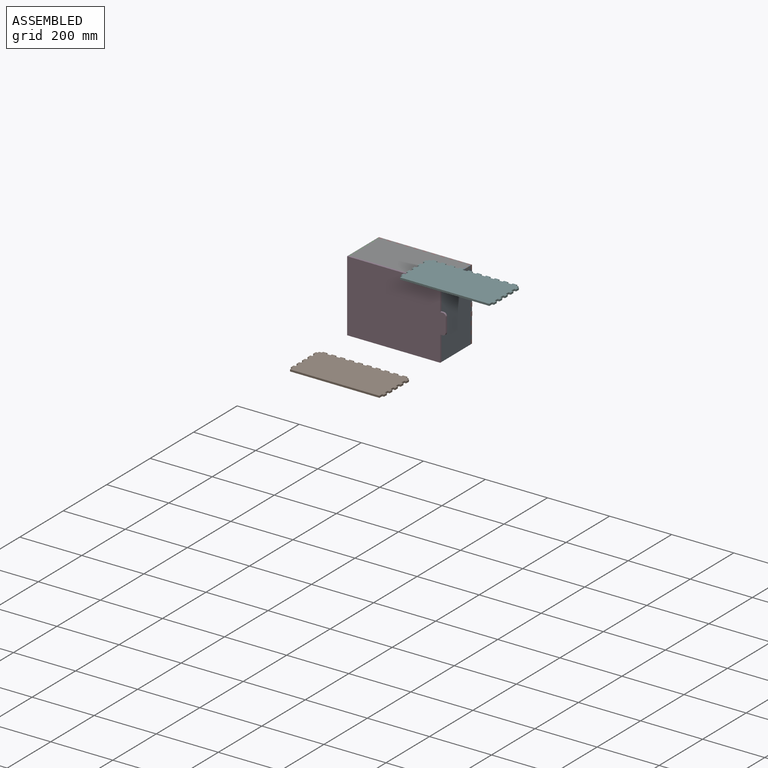
[diagram: assembled view]
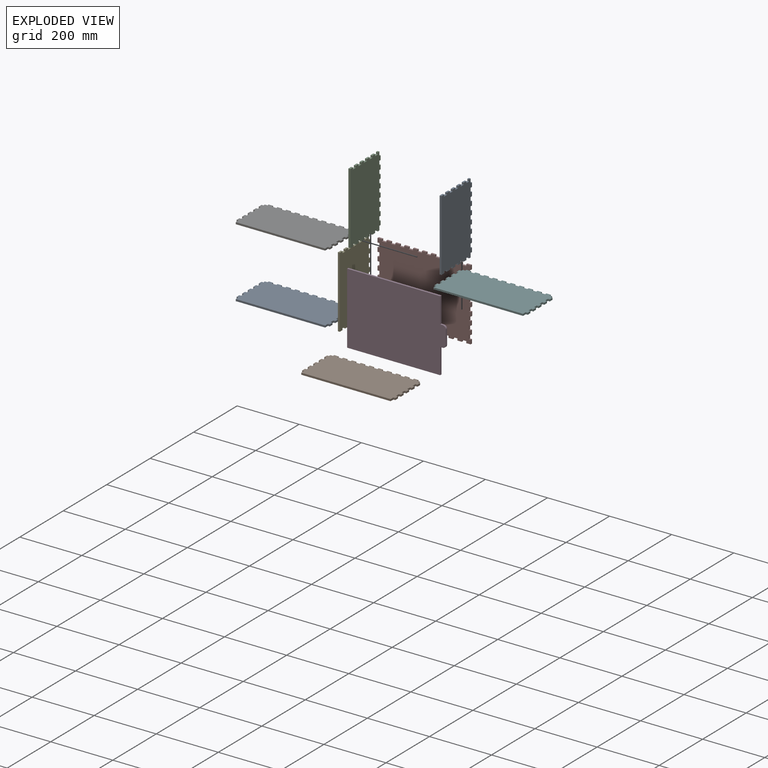
[diagram: exploded view]
GUIDED TOUR — MATED ASSEMBLY (Onshape document c0f93b202b602cbd2d23033f, AutoMate assembly c0f93b202b602cbd2d23033f_798e643a001d0c904de547af_803018418724ee15e28c0f07_default)

This assembly has 9 components, labeled P0..P8 below (a component is one placed occurrence of a part; the same part can appear more than once), held together by 5 mates. A mate is a constraint between two components; its type names the relative motion it leaves free:
  FASTENED — locks the two components together rigidly (no relative motion),
  REVOLUTE — leaves rotation about the listed axis free (a hinge).
Axis/direction vectors are unit vectors and 'through' points are millimeter coordinates, both in the assembly's world frame.

MATES
  1. FASTENED "Fastened 1": P7 <-> P8, direction (1.000, 0.000, 0.000) through (-205.83, -22.58, -101.08) mm
  2. FASTENED "front": P7 <-> P0, direction (0.000, 0.000, 1.000) through (66.74, -22.58, -86.78) mm
  3. FASTENED "ende": P7 <-> P2, direction (0.000, 0.000, 1.000) through (-221.26, -22.58, 102.63) mm
  4. FASTENED "Fastened 2": P7 <-> P6, direction (1.000, 0.000, 0.000) through (51.31, -22.58, 116.92) mm
  5. REVOLUTE "Revolute 1": P3 <-> P2, axis (0.000, 0.000, -1.000) through (-227.26, -162.58, 7.92) mm

ASSEMBLY ORDER
  1. P4 — the base component [order verified]
  2. P2 [order verified]
  3. P0 [order verified]
  4. P7 [order verified]
  5. P8 [order verified]
  6. P6 [order verified]
  7. P3 [order verified]
  8. P5 [order verified]
  9. P1 [order verified]
Order-tag legend:
  [order verified] — this step's position reverses a verified removal order: the component was checked to insert without passing through the ones already placed.

Of the 9 components, 9 carry the full construction recipe — the FeatureScript program that regenerates the part's solid from scratch; the rest are supplied as boundary geometry only.
Each toured component is shown spotlighted twice — in the assembled view, then in the exploded view, where a leader line traces a displaced component back to its assembled socket (saturated green if recipe-attached, orange if geometry-only; every other component desaturated gray) — followed by its recipe or geometry summary and the mates that hold it.
NOTE — document 2 of 2 of this assembly tour. The two overview renders and the header above are repeated from document 1; the component sections below continue where the previous document stopped.
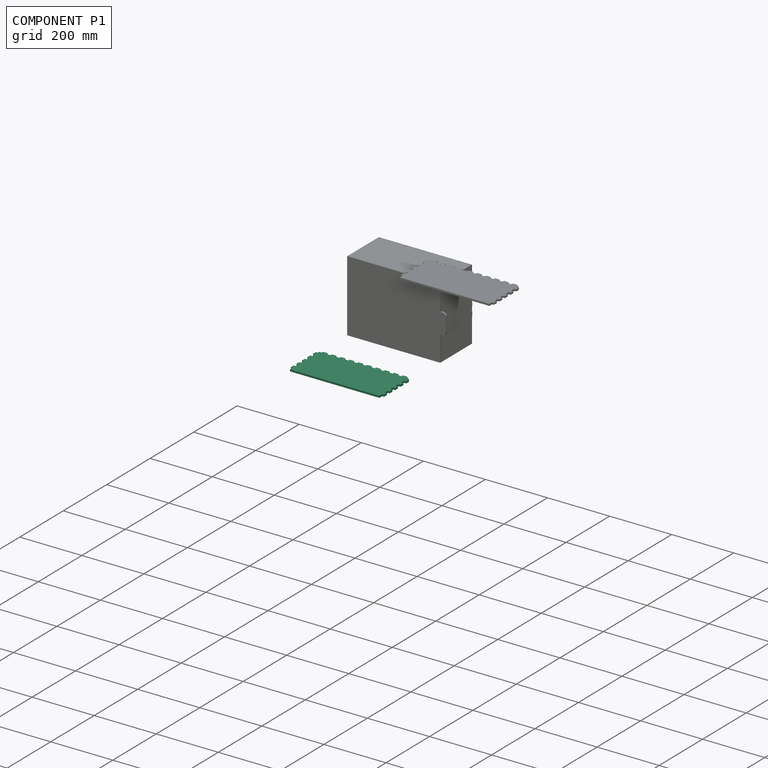
[diagram: component P1 — assembled]
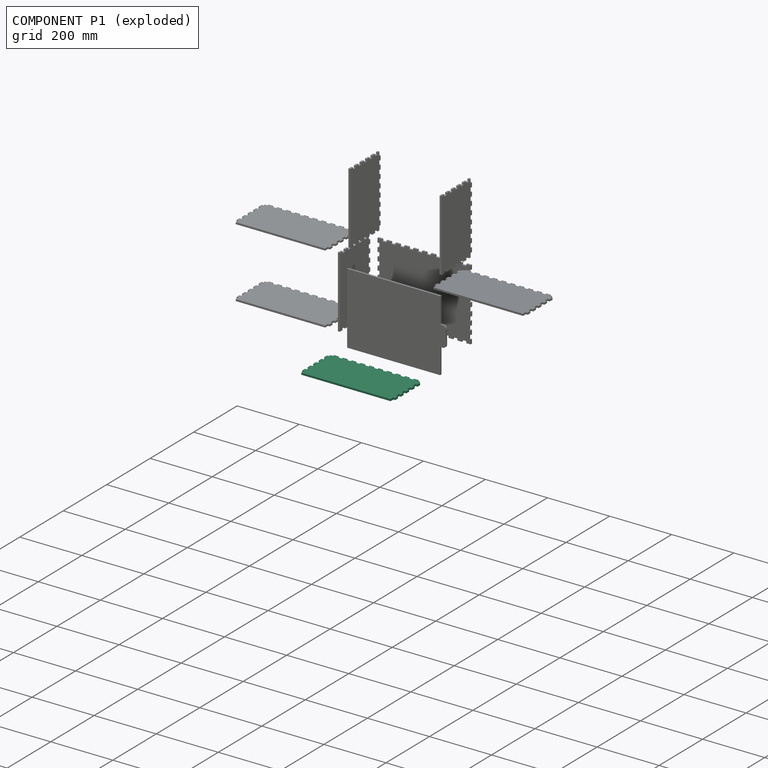
[diagram: component P1 — exploded]
COMPONENT P1 — recipe-attached (CADFS 00955357, mesh-verified: the recipe's output STEP matches this component's geometry to below the mesh-comparison resolution (tessellation chordal tolerance ~0.497 mm)).
Held by: no mates (free).
Construction recipe (FeatureScript — the CAD program that rebuilds this solid; sketch coordinates are in the units given by the * unit suffixes, e.g. mm):

FeatureScript 1511;
import(path : "onshape/std/geometry.fs", version : "1511.0");
import(path : "onshape/std/common.fs", version : "1511.0");
const mm = millimeter;
const VERTEX = EntityType.VERTEX;
const EDGE = EntityType.EDGE;
const FACE = EntityType.FACE;
const BODY = EntityType.BODY;
function v(x, y){return vector(x, y);}
function OD(order){return orderDisambiguation(order);}
function OSD(set){return originalSetDisambiguation(set);}
function TD(topology){return topologyDisambiguation(topology);}
function TDD(query){return trueDependencyDisambiguation(query);}
function sQuery(a, b, c) {return sketchEntityQuery(a, b, c);}

annotation { "Feature Type Name" : "Feature", "Feature Type Description" : "" }
export const myFeature = defineFeature(function(context is Context, id is Id, definition is map)
    precondition{}
    {
        {
            var Q0;
            Q0=qCreatedBy(makeId("Front.planeOp"),FACE);
            var sketch = newSketch(context, id + "F0", { "sketchPlane" : qUnion([Q0])});
            skLineSegment(sketch, "E0.top", {"start": v(144, 70) * mm, "end": v(-144, 70) * mm});
            skPoint(sketch, "E0.middle", {"position": v(0, 0) * mm});
            skLineSegment(sketch, "E1", {"start": v(-144, -64) * mm, "end": v(-135.71, -64) * mm});
            skLineSegment(sketch, "E2", {"start": v(-135.71, -64) * mm, "end": v(-135.71, -70) * mm});
            skLineSegment(sketch, "E3", {"start": v(-135.71, -70) * mm, "end": v(-121.43, -70) * mm});
            skLineSegment(sketch, "E4", {"start": v(-121.43, -70) * mm, "end": v(-121.43, -64) * mm});
            skLineSegment(sketch, "E5", {"start": v(-121.43, -64) * mm, "end": v(-107.14, -64) * mm});
            skLineSegment(sketch, "E6.1.0.0", {"start": v(-92.86, -64) * mm, "end": v(-78.57, -64) * mm});
            skLineSegment(sketch, "E6.1.0.1", {"start": v(-107.14, -64) * mm, "end": v(-107.14, -70) * mm});
            skLineSegment(sketch, "E6.1.0.2", {"start": v(-92.86, -70) * mm, "end": v(-92.86, -64) * mm});
            skLineSegment(sketch, "E6.1.0.3", {"start": v(-107.14, -70) * mm, "end": v(-92.86, -70) * mm});
            skLineSegment(sketch, "E6.2.0.0", {"start": v(-64.29, -64) * mm, "end": v(-50, -64) * mm});
            skLineSegment(sketch, "E6.2.0.1", {"start": v(-78.57, -64) * mm, "end": v(-78.57, -70) * mm});
            skLineSegment(sketch, "E6.2.0.2", {"start": v(-64.29, -70) * mm, "end": v(-64.29, -64) * mm});
            skLineSegment(sketch, "E6.2.0.3", {"start": v(-78.57, -70) * mm, "end": v(-64.29, -70) * mm});
            skLineSegment(sketch, "E6.2.0.4", {"start": v(-92.86, -64) * mm, "end": v(-78.57, -64) * mm});
            skLineSegment(sketch, "E6.3.0.0", {"start": v(-35.71, -64) * mm, "end": v(-21.43, -64) * mm});
            skLineSegment(sketch, "E6.3.0.1", {"start": v(-50, -64) * mm, "end": v(-50, -70) * mm});
            skLineSegment(sketch, "E6.3.0.2", {"start": v(-35.71, -70) * mm, "end": v(-35.71, -64) * mm});
            skLineSegment(sketch, "E6.3.0.3", {"start": v(-50, -70) * mm, "end": v(-35.71, -70) * mm});
            skLineSegment(sketch, "E6.3.0.4", {"start": v(-64.29, -64) * mm, "end": v(-50, -64) * mm});
            skLineSegment(sketch, "E6.4.0.0", {"start": v(-7.14, -64) * mm, "end": v(7.14, -64) * mm});
            skLineSegment(sketch, "E6.4.0.1", {"start": v(-21.43, -64) * mm, "end": v(-21.43, -70) * mm});
            skLineSegment(sketch, "E6.4.0.2", {"start": v(-7.14, -70) * mm, "end": v(-7.14, -64) * mm});
            skLineSegment(sketch, "E6.4.0.3", {"start": v(-21.43, -70) * mm, "end": v(-7.14, -70) * mm});
            skLineSegment(sketch, "E6.4.0.4", {"start": v(-35.71, -64) * mm, "end": v(-21.43, -64) * mm});
            skLineSegment(sketch, "E6.5.0.0", {"start": v(21.43, -64) * mm, "end": v(35.71, -64) * mm});
            skLineSegment(sketch, "E6.5.0.1", {"start": v(7.14, -64) * mm, "end": v(7.14, -70) * mm});
            skLineSegment(sketch, "E6.5.0.2", {"start": v(21.43, -70) * mm, "end": v(21.43, -64) * mm});
            skLineSegment(sketch, "E6.5.0.3", {"start": v(7.14, -70) * mm, "end": v(21.43, -70) * mm});
            skLineSegment(sketch, "E6.5.0.4", {"start": v(-7.14, -64) * mm, "end": v(7.14, -64) * mm});
            skLineSegment(sketch, "E6.6.0.0", {"start": v(50, -64) * mm, "end": v(64.29, -64) * mm});
            skLineSegment(sketch, "E6.6.0.1", {"start": v(35.71, -64) * mm, "end": v(35.71, -70) * mm});
            skLineSegment(sketch, "E6.6.0.2", {"start": v(50, -70) * mm, "end": v(50, -64) * mm});
            skLineSegment(sketch, "E6.6.0.3", {"start": v(35.71, -70) * mm, "end": v(50, -70) * mm});
            skLineSegment(sketch, "E6.6.0.4", {"start": v(21.43, -64) * mm, "end": v(35.71, -64) * mm});
            skLineSegment(sketch, "E6.7.0.0", {"start": v(78.57, -64) * mm, "end": v(92.86, -64) * mm});
            skLineSegment(sketch, "E6.7.0.1", {"start": v(64.29, -64) * mm, "end": v(64.29, -70) * mm});
            skLineSegment(sketch, "E6.7.0.2", {"start": v(78.57, -70) * mm, "end": v(78.57, -64) * mm});
            skLineSegment(sketch, "E6.7.0.3", {"start": v(64.29, -70) * mm, "end": v(78.57, -70) * mm});
            skLineSegment(sketch, "E6.7.0.4", {"start": v(50, -64) * mm, "end": v(64.29, -64) * mm});
            skLineSegment(sketch, "E6.8.0.0", {"start": v(107.14, -64) * mm, "end": v(121.43, -64) * mm});
            skLineSegment(sketch, "E6.8.0.1", {"start": v(92.86, -64) * mm, "end": v(92.86, -70) * mm});
            skLineSegment(sketch, "E6.8.0.2", {"start": v(107.14, -70) * mm, "end": v(107.14, -64) * mm});
            skLineSegment(sketch, "E6.8.0.3", {"start": v(92.86, -70) * mm, "end": v(107.14, -70) * mm});
            skLineSegment(sketch, "E6.8.0.4", {"start": v(78.57, -64) * mm, "end": v(92.86, -64) * mm});
            skLineSegment(sketch, "E6.9.0.0", {"start": v(135.71, -64) * mm, "end": v(144, -64) * mm});
            skLineSegment(sketch, "E6.9.0.1", {"start": v(121.43, -64) * mm, "end": v(121.43, -70) * mm});
            skLineSegment(sketch, "E6.9.0.2", {"start": v(135.71, -70) * mm, "end": v(135.71, -64) * mm});
            skLineSegment(sketch, "E6.9.0.3", {"start": v(121.43, -70) * mm, "end": v(135.71, -70) * mm});
            skLineSegment(sketch, "E6.9.0.4", {"start": v(107.14, -64) * mm, "end": v(121.43, -64) * mm});
            skLineSegment(sketch, "E6.direction1", {"start": v(-144, -64) * mm, "end": v(-121.43, -64) * mm, "construction": true});
            skPoint(sketch, "E7.orphan", {"position": v(-150, -70) * mm});
            skPoint(sketch, "E8.orphan", {"position": v(150, -70) * mm});
            skLineSegment(sketch, "E9", {"start": v(-144, -64) * mm, "end": v(-144, -57.27) * mm});
            skLineSegment(sketch, "E10", {"start": v(-144, -57.27) * mm, "end": v(-150, -57.27) * mm});
            skLineSegment(sketch, "E11", {"start": v(-150, -57.27) * mm, "end": v(-150, -44.55) * mm});
            skLineSegment(sketch, "E12", {"start": v(-150, -44.55) * mm, "end": v(-144, -44.55) * mm});
            skLineSegment(sketch, "E13", {"start": v(-144, -44.55) * mm, "end": v(-144, -31.82) * mm});
            skPoint(sketch, "E14.orphan", {"position": v(-150, -64) * mm});
            skLineSegment(sketch, "E15.1.0.0", {"start": v(-144, -38.55) * mm, "end": v(-144, -31.82) * mm});
            skLineSegment(sketch, "E15.1.0.1", {"start": v(-144, -31.82) * mm, "end": v(-150, -31.82) * mm});
            skLineSegment(sketch, "E15.1.0.2", {"start": v(-150, -19.1) * mm, "end": v(-144, -19.1) * mm});
            skLineSegment(sketch, "E15.1.0.3", {"start": v(-150, -31.82) * mm, "end": v(-150, -19.1) * mm});
            skPoint(sketch, "E15.1.0.4", {"position": v(-150, -44.55) * mm});
            skLineSegment(sketch, "E15.1.0.5", {"start": v(-144, -19.1) * mm, "end": v(-144, -6.36) * mm});
            skPoint(sketch, "E15.1.0.6", {"position": v(-150, -38.55) * mm});
            skLineSegment(sketch, "E15.2.0.0", {"start": v(-144, -13.1) * mm, "end": v(-144, -6.36) * mm});
            skLineSegment(sketch, "E15.2.0.1", {"start": v(-144, -6.36) * mm, "end": v(-150, -6.36) * mm});
            skLineSegment(sketch, "E15.2.0.2", {"start": v(-150, 6.36) * mm, "end": v(-144, 6.36) * mm});
            skLineSegment(sketch, "E15.2.0.3", {"start": v(-150, -6.36) * mm, "end": v(-150, 6.36) * mm});
            skPoint(sketch, "E15.2.0.4", {"position": v(-150, -19.1) * mm});
            skLineSegment(sketch, "E15.2.0.5", {"start": v(-144, 6.36) * mm, "end": v(-144, 19.1) * mm});
            skPoint(sketch, "E15.2.0.6", {"position": v(-150, -13.1) * mm});
            skLineSegment(sketch, "E15.3.0.0", {"start": v(-144, 12.36) * mm, "end": v(-144, 19.1) * mm});
            skLineSegment(sketch, "E15.3.0.1", {"start": v(-144, 19.1) * mm, "end": v(-150, 19.1) * mm});
            skLineSegment(sketch, "E15.3.0.2", {"start": v(-150, 31.82) * mm, "end": v(-144, 31.82) * mm});
            skLineSegment(sketch, "E15.3.0.3", {"start": v(-150, 19.1) * mm, "end": v(-150, 31.82) * mm});
            skPoint(sketch, "E15.3.0.4", {"position": v(-150, 6.36) * mm});
            skLineSegment(sketch, "E15.3.0.5", {"start": v(-144, 31.82) * mm, "end": v(-144, 44.55) * mm});
            skPoint(sketch, "E15.3.0.6", {"position": v(-150, 12.36) * mm});
            skLineSegment(sketch, "E15.4.0.0", {"start": v(-144, 37.82) * mm, "end": v(-144, 44.55) * mm});
            skLineSegment(sketch, "E15.4.0.1", {"start": v(-144, 44.55) * mm, "end": v(-150, 44.55) * mm});
            skLineSegment(sketch, "E15.4.0.2", {"start": v(-150, 57.27) * mm, "end": v(-144, 57.27) * mm});
            skLineSegment(sketch, "E15.4.0.3", {"start": v(-150, 44.55) * mm, "end": v(-150, 57.27) * mm});
            skPoint(sketch, "E15.4.0.4", {"position": v(-150, 31.82) * mm});
            skLineSegment(sketch, "E15.4.0.5", {"start": v(-144, 57.27) * mm, "end": v(-144, 70) * mm});
            skPoint(sketch, "E15.4.0.6", {"position": v(-150, 37.82) * mm});
            skLineSegment(sketch, "E15.direction1", {"start": v(-144, -64) * mm, "end": v(-144, -38.55) * mm, "construction": true});
            skPoint(sketch, "E16.orphan", {"position": v(-150, 70) * mm});
            skLineSegment(sketch, "E17.MirrorCS", {"start": v(144, -64) * mm, "end": v(144, -57.27) * mm});
            skLineSegment(sketch, "E18.MirrorCS", {"start": v(144, 37.82) * mm, "end": v(144, 44.55) * mm});
            skLineSegment(sketch, "E19.MirrorCS", {"start": v(144, -38.55) * mm, "end": v(144, -31.82) * mm});
            skLineSegment(sketch, "E20.MirrorCS", {"start": v(150, -57.27) * mm, "end": v(150, -44.55) * mm});
            skLineSegment(sketch, "E21.MirrorCS", {"start": v(144, 19.1) * mm, "end": v(150, 19.1) * mm});
            skLineSegment(sketch, "E22.MirrorCS", {"start": v(144, -64) * mm, "end": v(135.71, -64) * mm});
            skLineSegment(sketch, "E23.MirrorCS", {"start": v(144, -44.55) * mm, "end": v(144, -31.82) * mm});
            skLineSegment(sketch, "E24.MirrorCS", {"start": v(150, 6.36) * mm, "end": v(144, 6.36) * mm});
            skLineSegment(sketch, "E25.MirrorCS", {"start": v(144, -6.36) * mm, "end": v(150, -6.36) * mm});
            skLineSegment(sketch, "E26.MirrorCS", {"start": v(144, 31.82) * mm, "end": v(144, 44.55) * mm});
            skLineSegment(sketch, "E27.MirrorCS", {"start": v(144, 12.36) * mm, "end": v(144, 19.1) * mm});
            skLineSegment(sketch, "E28.MirrorCS", {"start": v(144, 6.36) * mm, "end": v(144, 19.1) * mm});
            skLineSegment(sketch, "E29.MirrorCS", {"start": v(144, -57.27) * mm, "end": v(150, -57.27) * mm});
            skLineSegment(sketch, "E30.MirrorCS", {"start": v(144, 44.55) * mm, "end": v(150, 44.55) * mm});
            skLineSegment(sketch, "E31.MirrorCS", {"start": v(150, -44.55) * mm, "end": v(144, -44.55) * mm});
            skLineSegment(sketch, "E32.MirrorCS", {"start": v(144, -31.82) * mm, "end": v(150, -31.82) * mm});
            skLineSegment(sketch, "E33.MirrorCS", {"start": v(150, -19.1) * mm, "end": v(144, -19.1) * mm});
            skLineSegment(sketch, "E34.MirrorCS", {"start": v(150, 44.55) * mm, "end": v(150, 57.27) * mm});
            skLineSegment(sketch, "E35.MirrorCS", {"start": v(144, -19.1) * mm, "end": v(144, -6.36) * mm});
            skLineSegment(sketch, "E36.MirrorCS", {"start": v(150, 57.27) * mm, "end": v(144, 57.27) * mm});
            skLineSegment(sketch, "E37.MirrorCS", {"start": v(150, -31.82) * mm, "end": v(150, -19.1) * mm});
            skLineSegment(sketch, "E38.MirrorCS", {"start": v(150, -6.36) * mm, "end": v(150, 6.36) * mm});
            skLineSegment(sketch, "E39.MirrorCS", {"start": v(135.71, -64) * mm, "end": v(135.71, -70) * mm});
            skLineSegment(sketch, "E40.MirrorCS", {"start": v(150, 19.1) * mm, "end": v(150, 31.82) * mm});
            skLineSegment(sketch, "E41.MirrorCS", {"start": v(144, 57.27) * mm, "end": v(144, 70) * mm});
            skLineSegment(sketch, "E42.MirrorCS", {"start": v(150, 31.82) * mm, "end": v(144, 31.82) * mm});
            skLineSegment(sketch, "E43.MirrorCS", {"start": v(144, -13.1) * mm, "end": v(144, -6.36) * mm});
            skLineSegment(sketch, "E44.MirrorCS", {"start": v(144, -64) * mm, "end": v(144, -38.55) * mm, "construction": true});
            skPoint(sketch, "E45.MirrorP", {"position": v(150, -44.55) * mm});
            skPoint(sketch, "E46.MirrorP", {"position": v(150, -38.55) * mm});
            skPoint(sketch, "E47.MirrorP", {"position": v(150, 70) * mm});
            skPoint(sketch, "E48.MirrorP", {"position": v(150, -19.1) * mm});
            skPoint(sketch, "E49.MirrorP", {"position": v(150, 12.36) * mm});
            skPoint(sketch, "E50.MirrorP", {"position": v(150, 31.82) * mm});
            skPoint(sketch, "E51.MirrorP", {"position": v(150, 6.36) * mm});
            skPoint(sketch, "E52.MirrorP", {"position": v(150, 37.82) * mm});
            skPoint(sketch, "E53.MirrorP", {"position": v(150, -64) * mm});
            skPoint(sketch, "E54.MirrorP", {"position": v(150, -13.1) * mm});
            skSolve(sketch);
        }
        {
            var Q0;
            Q0=makeQuery(id+"F0.imprint","IMPRINT",FACE,{"disambiguationData":[TD([[makeQuery(id+"F0.imprint","IMPRINT",EDGE,{"derivedFrom":sQuery(id+"F0.wireOp",EDGE,"E0.top")}),1.0]])]});
            extrude(context, id + "F1", {"entities" : qUnion([Q0]), "depth" : 6 * mm, "offsetDistance" : 25 * mm});
        }
    });
PROVENANCE & LICENSES
Assembly (occurrences, transforms, mates, per-part STEP geometry): AutoMate dataset, Zenodo record 7776208, CC0.
Construction recipes: CADFS (HuggingFace VladPyatov/CADFS, CC-BY-4.0, layered over the ABC dataset), FeatureScript reconstruction programs keyed by ABC model id.
Join: ABC meta listings map ABC model id -> Onshape documentId; within a shared document, parts are matched by geometric signature (bounding-box dims + volume at 0.1% relative tolerance, exact B-rep face/solid counts).
Verification: 9 of this assembly's 9 components carry a recipe attachment, and every attachment is mesh-verified: the CADFS STEP and the AutoMate member STEP were compared as meshes in their shared local frame (symmetric sampled-point-to-mesh distance); worst across the 9 attachments: below the mesh-comparison resolution (tessellation chordal tolerance ~0.589 mm) on a 393 mm part.
Renders: orthographic iso camera (az 35 / el 25); the floor grid conveys scale (grid pitch printed in each image; no ruler). In the exploded view each component is displaced by its stored offset vector: the offsets alone carry the explosion direction (mate normal/axis signs are not orientation cues and do not encode it), and separation distances are assigned per mate-chain, not proportionally to assembly-order depth.
